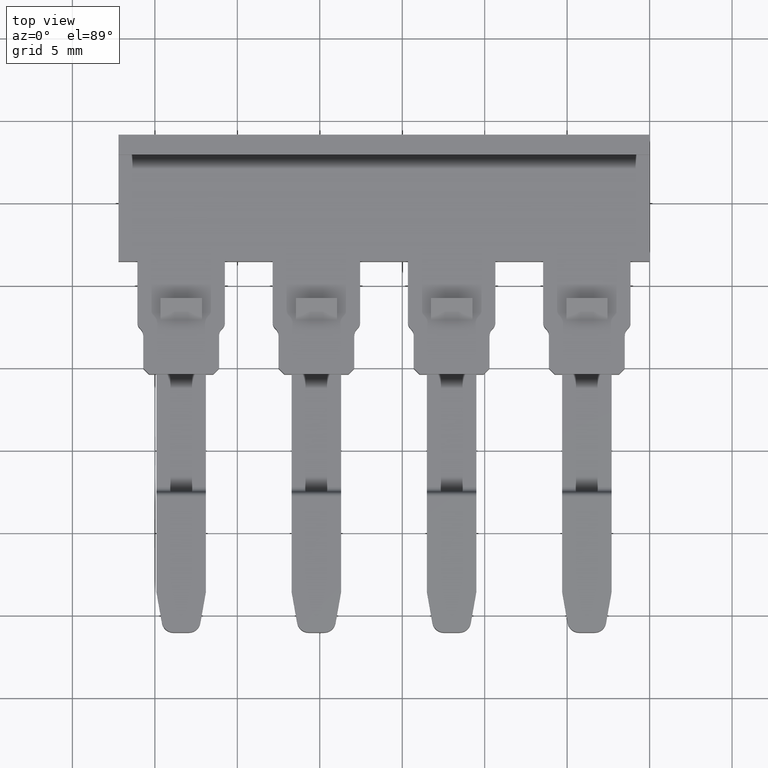
[diagram: clean part render]
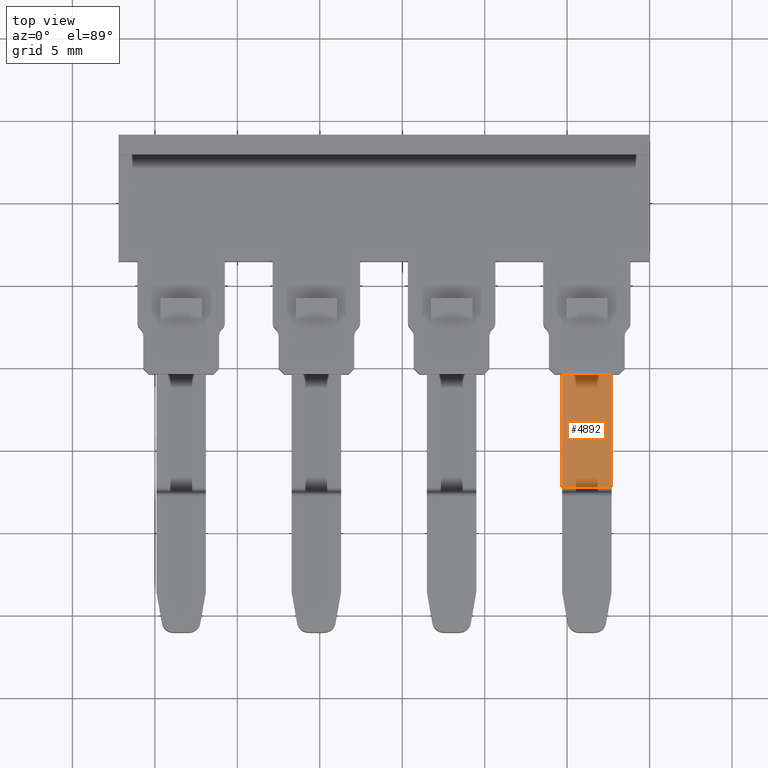
[diagram: same view with one face highlighted and labeled with its STEP entity id]
A machine part, top view. The second image highlights one B-rep face of the part: STEP entity #4892.
In plain terms, the highlighted planar face has unit normal (0, 0, -1).
Its self-contained STEP definition (entity closure, byte-faithful):
#175 = VERTEX_POINT ( 'NONE', #637 ) ;
#197 = VERTEX_POINT ( 'NONE', #588 ) ;
#209 = VERTEX_POINT ( 'NONE', #598 ) ;
#250 = VERTEX_POINT ( 'NONE', #687 ) ;
#432 = EDGE_LOOP ( 'NONE', ( #1205, #1187, #1181, #1226 ) ) ;
#588 = CARTESIAN_POINT ( 'NONE',  ( 1152.694494728928900, 659.6092820011524500, 2.199999999999997100 ) ) ;
#598 = CARTESIAN_POINT ( 'NONE',  ( 1149.694493449734000, 659.6092820011524500, 2.199999999999889600 ) ) ;
#637 = CARTESIAN_POINT ( 'NONE',  ( 1152.694494728928900, 652.7699856250221700, 2.200000000000050400 ) ) ;
#687 = CARTESIAN_POINT ( 'NONE',  ( 1149.694493738323700, 652.7700208248105600, 2.199999999999889600 ) ) ;
#1181 = ORIENTED_EDGE ( 'NONE', *, *, #5282, .F. ) ;
#1187 = ORIENTED_EDGE ( 'NONE', *, *, #5268, .T. ) ;
#1205 = ORIENTED_EDGE ( 'NONE', *, *, #5261, .F. ) ;
#1226 = ORIENTED_EDGE ( 'NONE', *, *, #5276, .F. ) ;
#1839 = DIRECTION ( 'NONE',  ( -1.259368144656452000E-037, 1.000000000000000000, 2.347622273454535600E-024 ) ) ;
#1853 = LINE ( 'NONE', #1856, #3976 ) ;
#1856 = CARTESIAN_POINT ( 'NONE',  ( 1149.694493738323700, 641.3475629657206100, 2.199999999999889600 ) ) ;
#1875 = CARTESIAN_POINT ( 'NONE',  ( 1158.234848447492800, 659.6092820011524500, 2.199999999999889600 ) ) ;
#1876 = DIRECTION ( 'NONE',  ( 1.000000000000000000, 1.259332280444392000E-037, 2.956436511251547900E-061 ) ) ;
#1877 = LINE ( 'NONE', #1883, #4040 ) ;
#1883 = CARTESIAN_POINT ( 'NONE',  ( 1152.694503362591800, 652.7699856249209900, 2.200000000000050400 ) ) ;
#1894 = LINE ( 'NONE', #1875, #4046 ) ;
#1900 = DIRECTION ( 'NONE',  ( 0.9999999999311652800, -1.173325886225305500E-005, 5.364441114782054900E-014 ) ) ;
#1914 = CARTESIAN_POINT ( 'NONE',  ( 1152.694494728928900, 641.3475629657206100, 2.200000000000050400 ) ) ;
#1922 = DIRECTION ( 'NONE',  ( 1.259368144656452000E-037, -1.000000000000000000, -2.347622273454535600E-024 ) ) ;
#1939 = LINE ( 'NONE', #1914, #4081 ) ;
#2494 = CARTESIAN_POINT ( 'NONE',  ( 1153.694489309877800, 641.3475629657206100, 2.200000000000104100 ) ) ;
#2497 = FACE_OUTER_BOUND ( 'NONE', #432, .T. ) ;
#2500 = DIRECTION ( 'NONE',  ( -1.000000000000000000, 0.0000000000000000000, -5.364441115151317600E-014 ) ) ;
#2509 = DIRECTION ( 'NONE',  ( 5.364441115151317600E-014, 2.347622273454535600E-024, -1.000000000000000000 ) ) ;
#2513 = PLANE ( 'NONE',  #4347 ) ;
#3976 = VECTOR ( 'NONE', #1839, 1000.000000000000000 ) ;
#4040 = VECTOR ( 'NONE', #1900, 1000.000000000000100 ) ;
#4046 = VECTOR ( 'NONE', #1876, 1000.000000000000000 ) ;
#4081 = VECTOR ( 'NONE', #1922, 1000.000000000000000 ) ;
#4347 = AXIS2_PLACEMENT_3D ( 'NONE', #2494, #2509, #2500 ) ;
#4892 = ADVANCED_FACE ( 'NONE', ( #2497 ), #2513, .F. ) ;
#5261 = EDGE_CURVE ( 'NONE', #250, #209, #1853, .T. ) ;
#5268 = EDGE_CURVE ( 'NONE', #250, #175, #1877, .T. ) ;
#5276 = EDGE_CURVE ( 'NONE', #209, #197, #1894, .T. ) ;
#5282 = EDGE_CURVE ( 'NONE', #197, #175, #1939, .T. ) ;